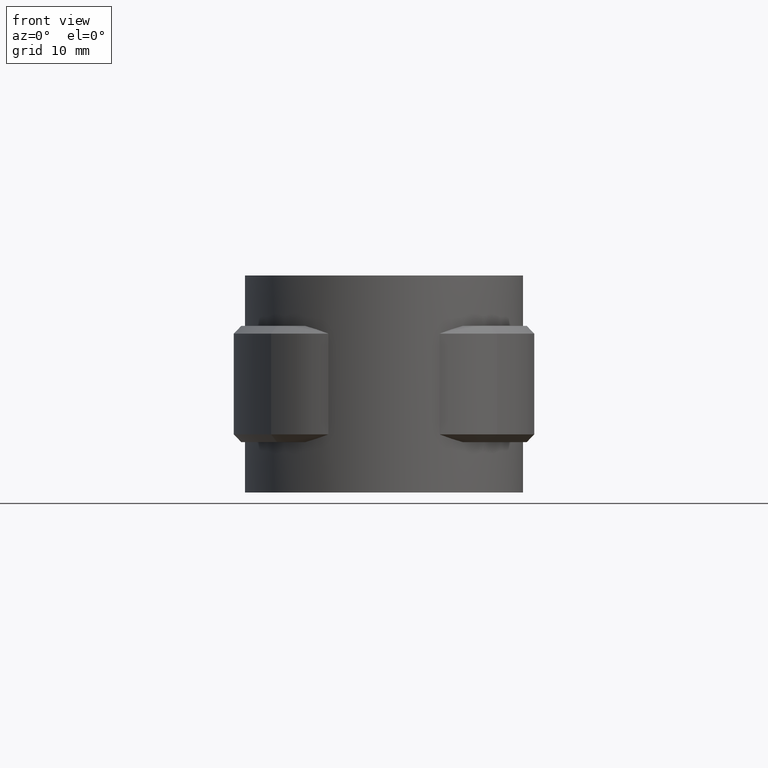
[diagram: clean part render]
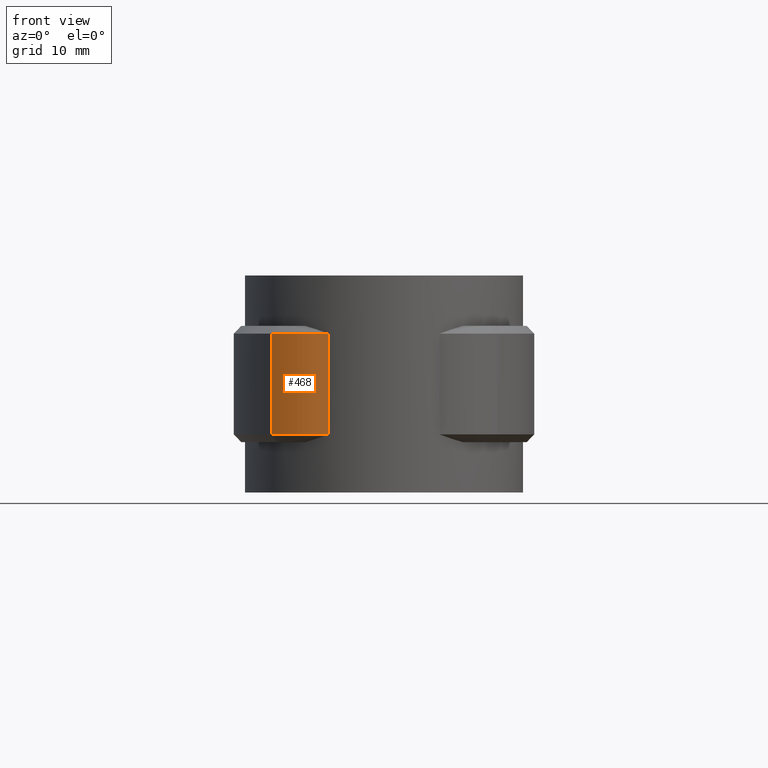
[diagram: same view with one face highlighted and labeled with its STEP entity id]
A machine part, front view. The second image highlights one B-rep face of the part: STEP entity #468.
In plain terms, the highlighted cylindrical surface (partial cylindrical patch) has radius 10.6 mm, axis along (0, 0, 1).
Its self-contained STEP definition (entity closure, byte-faithful):
#468 = ADVANCED_FACE( '', ( #925 ), #926, .T. );
#925 = FACE_OUTER_BOUND( '', #1989, .T. );
#926 = CYLINDRICAL_SURFACE( '', #1990, 10.6000000000000 );
#1989 = EDGE_LOOP( '', ( #4352, #4353, #4354, #4355 ) );
#1990 = AXIS2_PLACEMENT_3D( '', #4356, #4357, #4358 );
#4352 = ORIENTED_EDGE( '', *, *, #6532, .F. );
#4353 = ORIENTED_EDGE( '', *, *, #6535, .T. );
#4354 = ORIENTED_EDGE( '', *, *, #6543, .F. );
#4355 = ORIENTED_EDGE( '', *, *, #6521, .T. );
#4356 = CARTESIAN_POINT( '', ( -6.61812783194765, -5.85300000000000, -20.0000000000000 ) );
#4357 = DIRECTION( '', ( 0.000000000000000, 0.000000000000000, 1.00000000000000 ) );
#4358 = DIRECTION( '', ( -0.262413172112169, 0.964955608876403, 0.000000000000000 ) );
#6521 = EDGE_CURVE( '', #7651, #7656, #7658, .T. );
#6532 = EDGE_CURVE( '', #7670, #7656, #7672, .T. );
#6535 = EDGE_CURVE( '', #7670, #7675, #7677, .T. );
#6543 = EDGE_CURVE( '', #7651, #7675, #7685, .T. );
#7651 = VERTEX_POINT( '', #10706 );
#7656 = VERTEX_POINT( '', #10712 );
#7658 = CIRCLE( '', #10717, 10.6000000000000 );
#7670 = VERTEX_POINT( '', #10738 );
#7672 = LINE( '', #10743, #10744 );
#7675 = VERTEX_POINT( '', #10747 );
#7677 = CIRCLE( '', #10750, 10.6000000000000 );
#7685 = LINE( '', #10760, #10761 );
#10706 = CARTESIAN_POINT( '', ( -14.5583830689193, -12.8752750424448, -19.0000000000000 ) );
#10712 = CARTESIAN_POINT( '', ( -7.17213575351335, -16.4385125158323, -19.0000000000000 ) );
#10717 = AXIS2_PLACEMENT_3D( '', #12551, #12552, #12553 );
#10738 = CARTESIAN_POINT( '', ( -7.17213575351335, -16.4385125158323, -5.99999999999999 ) );
#10743 = CARTESIAN_POINT( '', ( -7.17213575351335, -16.4385125158323, -1.81903103690928E-011 ) );
#10744 = VECTOR( '', #12566, 1000.00000000000 );
#10747 = CARTESIAN_POINT( '', ( -14.5583830689193, -12.8752750424448, -5.99999999999996 ) );
#10750 = AXIS2_PLACEMENT_3D( '', #12571, #12572, #12573 );
#10760 = CARTESIAN_POINT( '', ( -14.5583830689193, -12.8752750424448, -20.0000000000000 ) );
#10761 = VECTOR( '', #12591, 1000.00000000000 );
#12551 = CARTESIAN_POINT( '', ( -6.61812783194765, -5.85300000000000, -19.0000000000000 ) );
#12552 = DIRECTION( '', ( 0.000000000000000, 0.000000000000000, 1.00000000000000 ) );
#12553 = DIRECTION( '', ( 1.00000000000000, 0.000000000000000, 0.000000000000000 ) );
#12566 = DIRECTION( '', ( 0.000000000000000, 0.000000000000000, -1.00000000000000 ) );
#12571 = CARTESIAN_POINT( '', ( -6.61812783194765, -5.85300000000000, -5.99999999999999 ) );
#12572 = DIRECTION( '', ( 0.000000000000000, 0.000000000000000, -1.00000000000000 ) );
#12573 = DIRECTION( '', ( -1.00000000000000, 0.000000000000000, 0.000000000000000 ) );
#12591 = DIRECTION( '', ( 0.000000000000000, 0.000000000000000, 1.00000000000000 ) );